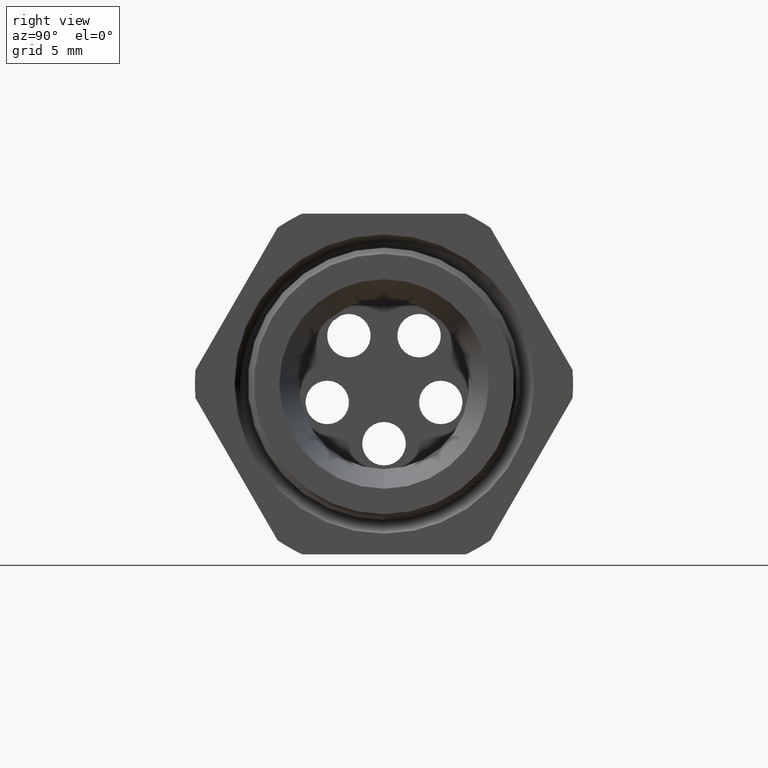
[diagram: clean part render]
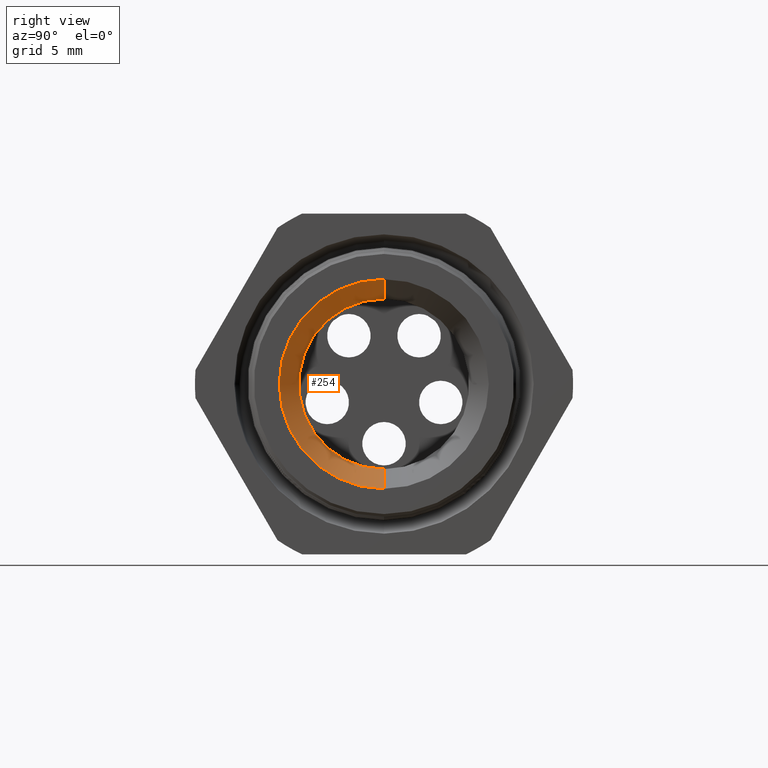
[diagram: same view with one face highlighted and labeled with its STEP entity id]
A machine part, right view. The second image highlights one B-rep face of the part: STEP entity #254.
In plain terms, the highlighted conical surface has half-angle 3.148 deg.
Its self-contained STEP definition (entity closure, byte-faithful):
#243 = VERTEX_POINT ( 'NONE', #2312 ) ;
#244 = VERTEX_POINT ( 'NONE', #2311 ) ;
#245 = EDGE_CURVE ( 'NONE', #249, #244, #2310, .T. ) ;
#246 = EDGE_CURVE ( 'NONE', #243, #244, #2305, .T. ) ;
#247 = ORIENTED_EDGE ( 'NONE', *, *, #245, .F. ) ;
#248 = ORIENTED_EDGE ( 'NONE', *, *, #246, .T. ) ;
#249 = VERTEX_POINT ( 'NONE', #2306 ) ;
#250 = EDGE_CURVE ( 'NONE', #274, #243, #2363, .T. ) ;
#251 = ORIENTED_EDGE ( 'NONE', *, *, #250, .T. ) ;
#252 = EDGE_LOOP ( 'NONE', ( #253, #251, #248, #247 ) ) ;
#253 = ORIENTED_EDGE ( 'NONE', *, *, #289, .F. ) ;
#254 = ADVANCED_FACE ( 'NONE', ( #2359 ), #2358, .F. ) ;
#274 = VERTEX_POINT ( 'NONE', #2384 ) ;
#289 = EDGE_CURVE ( 'NONE', #274, #249, #2414, .T. ) ;
#2301 = DIRECTION ( 'NONE',  ( 0.0000000000000000000, 0.0000000000000000000, -1.000000000000000000 ) ) ;
#2302 = DIRECTION ( 'NONE',  ( 1.000000000000000000, 0.0000000000000000000, 0.0000000000000000000 ) ) ;
#2303 = CARTESIAN_POINT ( 'NONE',  ( 0.03999999999999998000, 0.0000000000000000000, 0.0000000000000000000 ) ) ;
#2304 = AXIS2_PLACEMENT_3D ( 'NONE', #2303, #2302, #2301 ) ;
#2305 = CIRCLE ( 'NONE', #2304, 0.2891955268946231900 ) ;
#2306 = CARTESIAN_POINT ( 'NONE',  ( -0.9454330708661420300, 0.0000000000000000000, -0.2350000000000000100 ) ) ;
#2307 = DIRECTION ( 'NONE',  ( 0.9984911057575849300, 0.0000000000000000000, -0.05491367519111591700 ) ) ;
#2308 = VECTOR ( 'NONE', #2307, 39.37007874015748100 ) ;
#2309 = CARTESIAN_POINT ( 'NONE',  ( -0.9454330708661420300, 0.0000000000000000000, -0.2350000000000000100 ) ) ;
#2310 = LINE ( 'NONE', #2309, #2308 ) ;
#2311 = CARTESIAN_POINT ( 'NONE',  ( 0.03999999999999998000, 0.0000000000000000000, -0.2891955268946231900 ) ) ;
#2312 = CARTESIAN_POINT ( 'NONE',  ( 0.03999999999999998000, 3.541623763392326200E-017, 0.2891955268946231900 ) ) ;
#2354 = DIRECTION ( 'NONE',  ( 0.0000000000000000000, 0.0000000000000000000, -1.000000000000000000 ) ) ;
#2355 = DIRECTION ( 'NONE',  ( 1.000000000000000000, 0.0000000000000000000, 0.0000000000000000000 ) ) ;
#2356 = CARTESIAN_POINT ( 'NONE',  ( -0.9454330708661420300, 0.0000000000000000000, 0.0000000000000000000 ) ) ;
#2357 = AXIS2_PLACEMENT_3D ( 'NONE', #2356, #2355, #2354 ) ;
#2358 = CONICAL_SURFACE ( 'NONE', #2357, 0.2350000000000000100, 0.05494131151472637900 ) ;
#2359 = FACE_OUTER_BOUND ( 'NONE', #252, .T. ) ;
#2360 = DIRECTION ( 'NONE',  ( 0.9984911057575849300, 6.724985655221751600E-018, 0.05491367519111591700 ) ) ;
#2361 = VECTOR ( 'NONE', #2360, 39.37007874015748100 ) ;
#2362 = CARTESIAN_POINT ( 'NONE',  ( -0.9454330708661420300, 2.877919977996280400E-017, 0.2350000000000000100 ) ) ;
#2363 = LINE ( 'NONE', #2362, #2361 ) ;
#2384 = CARTESIAN_POINT ( 'NONE',  ( -0.9454330708661420300, 3.209771870694303300E-017, 0.2350000000000000100 ) ) ;
#2410 = DIRECTION ( 'NONE',  ( 0.0000000000000000000, 0.0000000000000000000, -1.000000000000000000 ) ) ;
#2411 = DIRECTION ( 'NONE',  ( 1.000000000000000000, 0.0000000000000000000, 0.0000000000000000000 ) ) ;
#2412 = CARTESIAN_POINT ( 'NONE',  ( -0.9454330708661420300, 0.0000000000000000000, 0.0000000000000000000 ) ) ;
#2413 = AXIS2_PLACEMENT_3D ( 'NONE', #2412, #2411, #2410 ) ;
#2414 = CIRCLE ( 'NONE', #2413, 0.2350000000000000100 ) ;